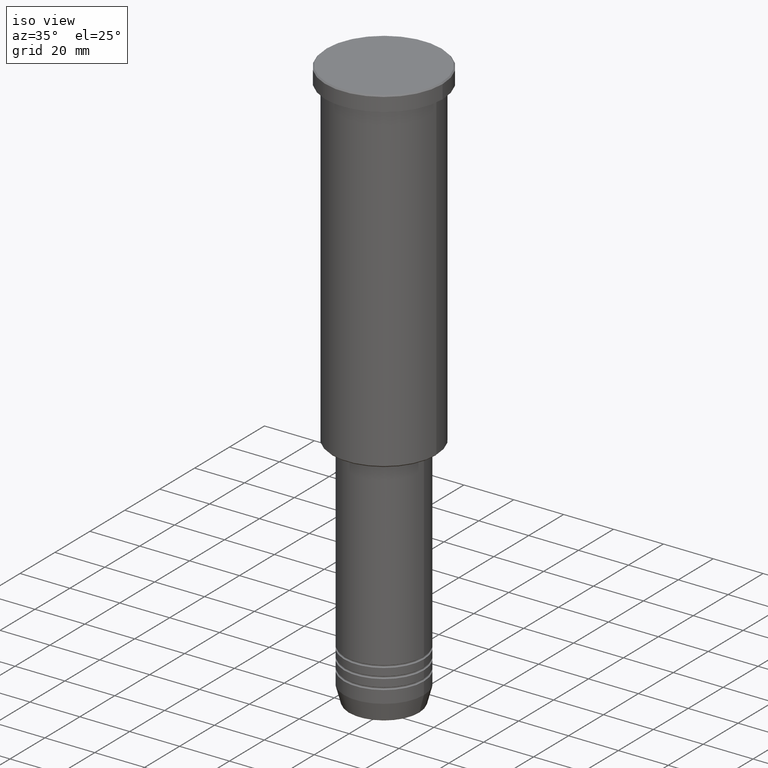
[diagram: clean part render]
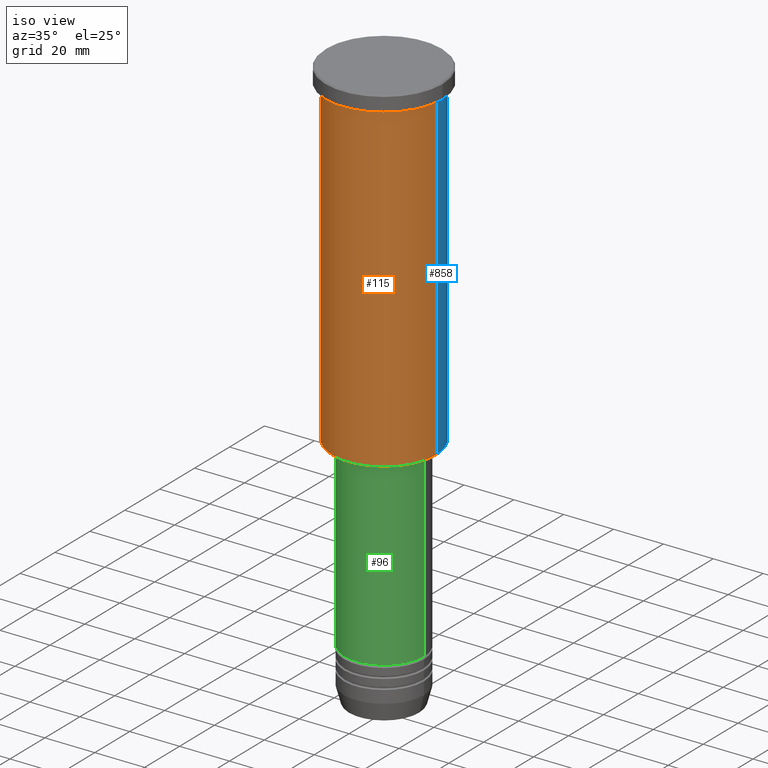
[diagram: same view with three faces highlighted in distinct colors, each labeled with its STEP entity id]
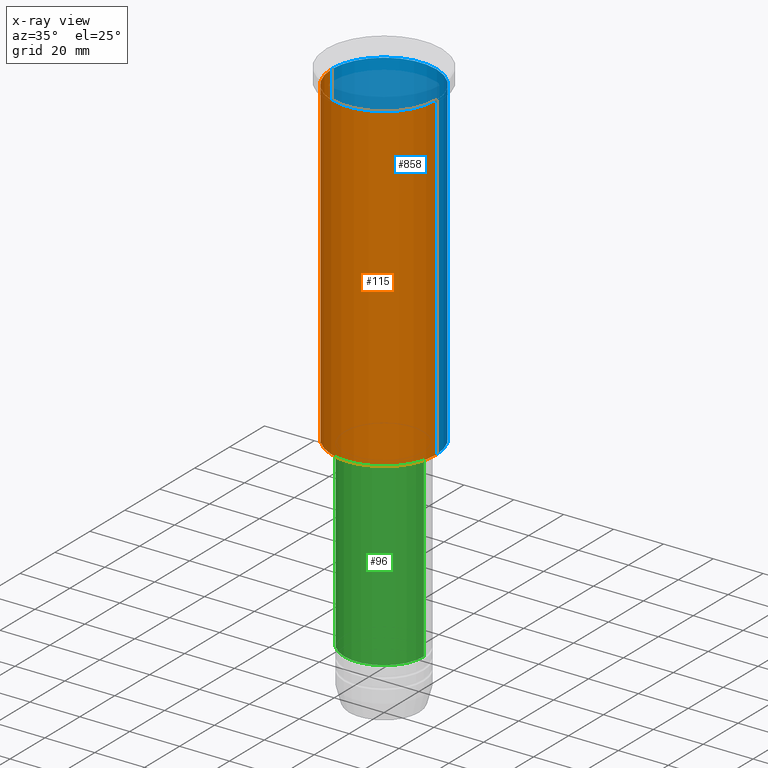
[diagram: x-ray of the same camera — body ghosted, the three highlighted faces saturated]
A machine part, iso view with three faces highlighted in distinct colors.
The next image is the same camera in x-ray (body ghosted, the three faces saturated) — at least one of them is partly hidden behind the body in this view.
Their STEP definitions:

[orange] entity #115 — the highlighted cylindrical surface (partial cylindrical patch) has radius 21 mm, axis along (-0, -0, 1).
#5 = AXIS2_PLACEMENT_3D ( 'NONE', #892, #805, #536 ) ;
#15 = VERTEX_POINT ( 'NONE', #121 ) ;
#48 = CARTESIAN_POINT ( 'NONE',  ( 0.000000000000000000, 0.000000000000000000, -135.5000000000000000 ) ) ;
#113 = VERTEX_POINT ( 'NONE', #702 ) ;
#115 = ADVANCED_FACE ( 'NONE', ( #696 ), #1066, .T. ) ;
#119 = CARTESIAN_POINT ( 'NONE',  ( -21.00000000000000000, 2.571758278209441661E-15, -135.5000000000000000 ) ) ;
#121 = CARTESIAN_POINT ( 'NONE',  ( 21.00000000000000000, 0.000000000000000000, -6.999999999999993783 ) ) ;
#134 = DIRECTION ( 'NONE',  ( -0.000000000000000000, -0.000000000000000000, 1.000000000000000000 ) ) ;
#152 = CARTESIAN_POINT ( 'NONE',  ( 0.000000000000000000, 0.000000000000000000, -6.999999999999993783 ) ) ;
#163 = ORIENTED_EDGE ( 'NONE', *, *, #1015, .T. ) ;
#283 = DIRECTION ( 'NONE',  ( -0.000000000000000000, -0.000000000000000000, 1.000000000000000000 ) ) ;
#324 = CIRCLE ( 'NONE', #454, 21.00000000000000000 ) ;
#341 = CIRCLE ( 'NONE', #775, 21.00000000000000000 ) ;
#373 = LINE ( 'NONE', #390, #1097 ) ;
#390 = CARTESIAN_POINT ( 'NONE',  ( 21.00000000000000000, 0.000000000000000000, 0.000000000000000000 ) ) ;
#425 = DIRECTION ( 'NONE',  ( -1.000000000000000000, 0.000000000000000000, 0.000000000000000000 ) ) ;
#431 = DIRECTION ( 'NONE',  ( 1.000000000000000000, 0.000000000000000000, 0.000000000000000000 ) ) ;
#454 = AXIS2_PLACEMENT_3D ( 'NONE', #152, #990, #431 ) ;
#536 = DIRECTION ( 'NONE',  ( 1.000000000000000000, 0.000000000000000000, 0.000000000000000000 ) ) ;
#672 = DIRECTION ( 'NONE',  ( -0.000000000000000000, -0.000000000000000000, 1.000000000000000000 ) ) ;
#696 = FACE_OUTER_BOUND ( 'NONE', #886, .T. ) ;
#702 = CARTESIAN_POINT ( 'NONE',  ( -21.00000000000000000, 2.571758278209441661E-15, -6.999999999999993783 ) ) ;
#736 = VECTOR ( 'NONE', #672, 1000.000000000000000 ) ;
#752 = ORIENTED_EDGE ( 'NONE', *, *, #1067, .F. ) ;
#759 = ORIENTED_EDGE ( 'NONE', *, *, #831, .F. ) ;
#768 = CARTESIAN_POINT ( 'NONE',  ( -21.00000000000000000, 2.571758278209441661E-15, 0.000000000000000000 ) ) ;
#775 = AXIS2_PLACEMENT_3D ( 'NONE', #48, #134, #425 ) ;
#795 = EDGE_CURVE ( 'NONE', #1012, #15, #373, .T. ) ;
#805 = DIRECTION ( 'NONE',  ( -0.000000000000000000, -0.000000000000000000, 1.000000000000000000 ) ) ;
#831 = EDGE_CURVE ( 'NONE', #872, #113, #946, .T. ) ;
#872 = VERTEX_POINT ( 'NONE', #119 ) ;
#886 = EDGE_LOOP ( 'NONE', ( #759, #163, #1107, #752 ) ) ;
#892 = CARTESIAN_POINT ( 'NONE',  ( 0.000000000000000000, 0.000000000000000000, 0.000000000000000000 ) ) ;
#946 = LINE ( 'NONE', #768, #736 ) ;
#952 = CARTESIAN_POINT ( 'NONE',  ( 21.00000000000000000, 0.000000000000000000, -135.5000000000000000 ) ) ;
#990 = DIRECTION ( 'NONE',  ( -0.000000000000000000, -0.000000000000000000, 1.000000000000000000 ) ) ;
#1012 = VERTEX_POINT ( 'NONE', #952 ) ;
#1015 = EDGE_CURVE ( 'NONE', #872, #1012, #341, .T. ) ;
#1066 = CYLINDRICAL_SURFACE ( 'NONE', #5, 21.00000000000000000 ) ;
#1067 = EDGE_CURVE ( 'NONE', #113, #15, #324, .T. ) ;
#1097 = VECTOR ( 'NONE', #283, 1000.000000000000000 ) ;
#1107 = ORIENTED_EDGE ( 'NONE', *, *, #795, .T. ) ;

[blue] entity #858 — the highlighted cylindrical surface (partial cylindrical patch) has radius 21 mm, axis along (-0, -0, 1).
#15 = VERTEX_POINT ( 'NONE', #121 ) ;
#74 = CIRCLE ( 'NONE', #586, 21.00000000000000000 ) ;
#107 = EDGE_CURVE ( 'NONE', #15, #113, #337, .T. ) ;
#113 = VERTEX_POINT ( 'NONE', #702 ) ;
#117 = EDGE_CURVE ( 'NONE', #1012, #872, #74, .T. ) ;
#119 = CARTESIAN_POINT ( 'NONE',  ( -21.00000000000000000, 2.571758278209441661E-15, -135.5000000000000000 ) ) ;
#121 = CARTESIAN_POINT ( 'NONE',  ( 21.00000000000000000, 0.000000000000000000, -6.999999999999993783 ) ) ;
#132 = CARTESIAN_POINT ( 'NONE',  ( 0.000000000000000000, 0.000000000000000000, 0.000000000000000000 ) ) ;
#205 = CYLINDRICAL_SURFACE ( 'NONE', #415, 21.00000000000000000 ) ;
#231 = AXIS2_PLACEMENT_3D ( 'NONE', #867, #707, #429 ) ;
#239 = DIRECTION ( 'NONE',  ( -0.000000000000000000, -0.000000000000000000, 1.000000000000000000 ) ) ;
#283 = DIRECTION ( 'NONE',  ( -0.000000000000000000, -0.000000000000000000, 1.000000000000000000 ) ) ;
#301 = ORIENTED_EDGE ( 'NONE', *, *, #831, .T. ) ;
#337 = CIRCLE ( 'NONE', #231, 21.00000000000000000 ) ;
#370 = ORIENTED_EDGE ( 'NONE', *, *, #117, .T. ) ;
#373 = LINE ( 'NONE', #390, #1097 ) ;
#387 = ORIENTED_EDGE ( 'NONE', *, *, #107, .F. ) ;
#390 = CARTESIAN_POINT ( 'NONE',  ( 21.00000000000000000, 0.000000000000000000, 0.000000000000000000 ) ) ;
#405 = DIRECTION ( 'NONE',  ( -0.000000000000000000, -0.000000000000000000, 1.000000000000000000 ) ) ;
#415 = AXIS2_PLACEMENT_3D ( 'NONE', #132, #405, #1125 ) ;
#429 = DIRECTION ( 'NONE',  ( 1.000000000000000000, 0.000000000000000000, 0.000000000000000000 ) ) ;
#586 = AXIS2_PLACEMENT_3D ( 'NONE', #1061, #239, #1074 ) ;
#672 = DIRECTION ( 'NONE',  ( -0.000000000000000000, -0.000000000000000000, 1.000000000000000000 ) ) ;
#702 = CARTESIAN_POINT ( 'NONE',  ( -21.00000000000000000, 2.571758278209441661E-15, -6.999999999999993783 ) ) ;
#707 = DIRECTION ( 'NONE',  ( -0.000000000000000000, -0.000000000000000000, 1.000000000000000000 ) ) ;
#736 = VECTOR ( 'NONE', #672, 1000.000000000000000 ) ;
#768 = CARTESIAN_POINT ( 'NONE',  ( -21.00000000000000000, 2.571758278209441661E-15, 0.000000000000000000 ) ) ;
#795 = EDGE_CURVE ( 'NONE', #1012, #15, #373, .T. ) ;
#831 = EDGE_CURVE ( 'NONE', #872, #113, #946, .T. ) ;
#858 = ADVANCED_FACE ( 'NONE', ( #1033 ), #205, .T. ) ;
#867 = CARTESIAN_POINT ( 'NONE',  ( 0.000000000000000000, 0.000000000000000000, -6.999999999999993783 ) ) ;
#872 = VERTEX_POINT ( 'NONE', #119 ) ;
#946 = LINE ( 'NONE', #768, #736 ) ;
#952 = CARTESIAN_POINT ( 'NONE',  ( 21.00000000000000000, 0.000000000000000000, -135.5000000000000000 ) ) ;
#1012 = VERTEX_POINT ( 'NONE', #952 ) ;
#1033 = FACE_OUTER_BOUND ( 'NONE', #1049, .T. ) ;
#1049 = EDGE_LOOP ( 'NONE', ( #370, #301, #387, #1099 ) ) ;
#1061 = CARTESIAN_POINT ( 'NONE',  ( 0.000000000000000000, 0.000000000000000000, -135.5000000000000000 ) ) ;
#1074 = DIRECTION ( 'NONE',  ( -1.000000000000000000, 0.000000000000000000, 0.000000000000000000 ) ) ;
#1097 = VECTOR ( 'NONE', #283, 1000.000000000000000 ) ;
#1099 = ORIENTED_EDGE ( 'NONE', *, *, #795, .F. ) ;
#1125 = DIRECTION ( 'NONE',  ( 1.000000000000000000, 0.000000000000000000, 0.000000000000000000 ) ) ;

[green] entity #96 — the highlighted cylindrical surface (partial cylindrical patch) has radius 16 mm, axis along (-0, -0, 1).
#3 = CARTESIAN_POINT ( 'NONE',  ( 16.00000000000000000, 0.000000000000000000, 0.000000000000000000 ) ) ;
#7 = CIRCLE ( 'NONE', #1018, 16.00000000000000355 ) ;
#21 = LINE ( 'NONE', #3, #980 ) ;
#42 = DIRECTION ( 'NONE',  ( 1.000000000000000000, 0.000000000000000000, 0.000000000000000000 ) ) ;
#52 = FACE_OUTER_BOUND ( 'NONE', #633, .T. ) ;
#83 = CARTESIAN_POINT ( 'NONE',  ( 0.000000000000000000, 0.000000000000000000, -209.9999999999999432 ) ) ;
#96 = ADVANCED_FACE ( 'NONE', ( #52 ), #684, .T. ) ;
#228 = ORIENTED_EDGE ( 'NONE', *, *, #272, .T. ) ;
#272 = EDGE_CURVE ( 'NONE', #1143, #563, #571, .T. ) ;
#333 = DIRECTION ( 'NONE',  ( -0.000000000000000000, -0.000000000000000000, 1.000000000000000000 ) ) ;
#334 = DIRECTION ( 'NONE',  ( -0.000000000000000000, -0.000000000000000000, 1.000000000000000000 ) ) ;
#538 = CARTESIAN_POINT ( 'NONE',  ( 16.00000000000000000, 0.000000000000000000, -209.9999999999999432 ) ) ;
#559 = CARTESIAN_POINT ( 'NONE',  ( 0.000000000000000000, 0.000000000000000000, -137.0000000000000284 ) ) ;
#563 = VERTEX_POINT ( 'NONE', #538 ) ;
#570 = DIRECTION ( 'NONE',  ( -0.000000000000000000, -0.000000000000000000, 1.000000000000000000 ) ) ;
#571 = CIRCLE ( 'NONE', #1169, 16.00000000000000000 ) ;
#633 = EDGE_LOOP ( 'NONE', ( #1089, #228, #922, #906 ) ) ;
#660 = CARTESIAN_POINT ( 'NONE',  ( 16.00000000000000355, 0.000000000000000000, -137.0000000000000284 ) ) ;
#666 = CARTESIAN_POINT ( 'NONE',  ( -16.00000000000000355, 1.959434878635765526E-15, -137.0000000000000284 ) ) ;
#684 = CYLINDRICAL_SURFACE ( 'NONE', #754, 16.00000000000000000 ) ;
#713 = CARTESIAN_POINT ( 'NONE',  ( -16.00000000000000000, 1.959434878635765131E-15, -209.9999999999999432 ) ) ;
#725 = VERTEX_POINT ( 'NONE', #660 ) ;
#754 = AXIS2_PLACEMENT_3D ( 'NONE', #879, #333, #788 ) ;
#779 = EDGE_CURVE ( 'NONE', #563, #725, #21, .T. ) ;
#788 = DIRECTION ( 'NONE',  ( 1.000000000000000000, 0.000000000000000000, 0.000000000000000000 ) ) ;
#796 = VERTEX_POINT ( 'NONE', #666 ) ;
#819 = DIRECTION ( 'NONE',  ( -0.000000000000000000, -0.000000000000000000, 1.000000000000000000 ) ) ;
#821 = DIRECTION ( 'NONE',  ( 1.000000000000000000, 0.000000000000000000, 0.000000000000000000 ) ) ;
#879 = CARTESIAN_POINT ( 'NONE',  ( 0.000000000000000000, 0.000000000000000000, 0.000000000000000000 ) ) ;
#906 = ORIENTED_EDGE ( 'NONE', *, *, #988, .F. ) ;
#917 = DIRECTION ( 'NONE',  ( -0.000000000000000000, -0.000000000000000000, 1.000000000000000000 ) ) ;
#922 = ORIENTED_EDGE ( 'NONE', *, *, #779, .T. ) ;
#980 = VECTOR ( 'NONE', #917, 1000.000000000000000 ) ;
#988 = EDGE_CURVE ( 'NONE', #796, #725, #7, .T. ) ;
#1018 = AXIS2_PLACEMENT_3D ( 'NONE', #559, #334, #42 ) ;
#1022 = VECTOR ( 'NONE', #819, 1000.000000000000000 ) ;
#1089 = ORIENTED_EDGE ( 'NONE', *, *, #1127, .F. ) ;
#1127 = EDGE_CURVE ( 'NONE', #1143, #796, #1181, .T. ) ;
#1143 = VERTEX_POINT ( 'NONE', #713 ) ;
#1165 = CARTESIAN_POINT ( 'NONE',  ( -16.00000000000000000, 1.959434878635765131E-15, 0.000000000000000000 ) ) ;
#1169 = AXIS2_PLACEMENT_3D ( 'NONE', #83, #570, #821 ) ;
#1181 = LINE ( 'NONE', #1165, #1022 ) ;